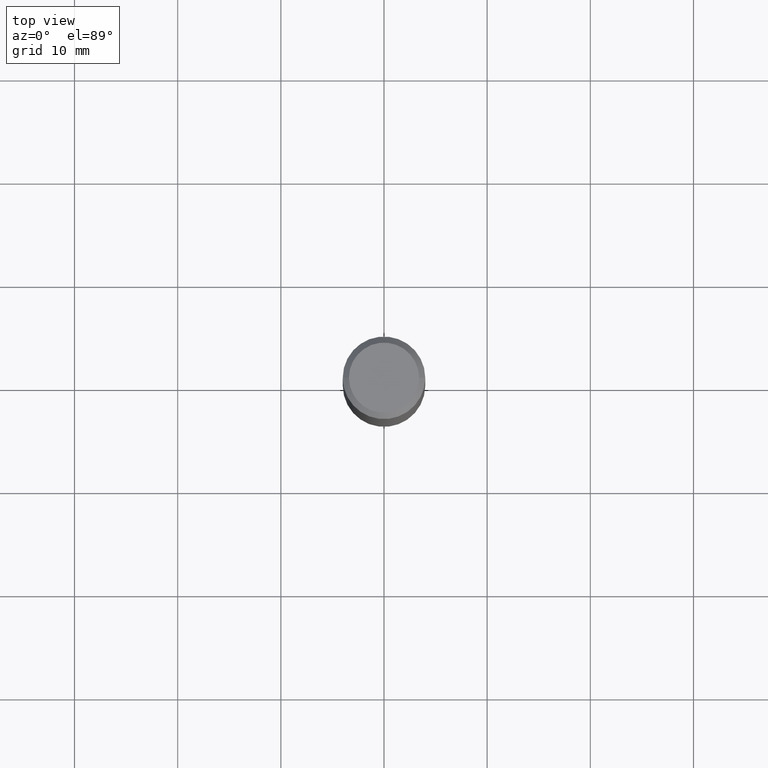
[diagram: clean part render]
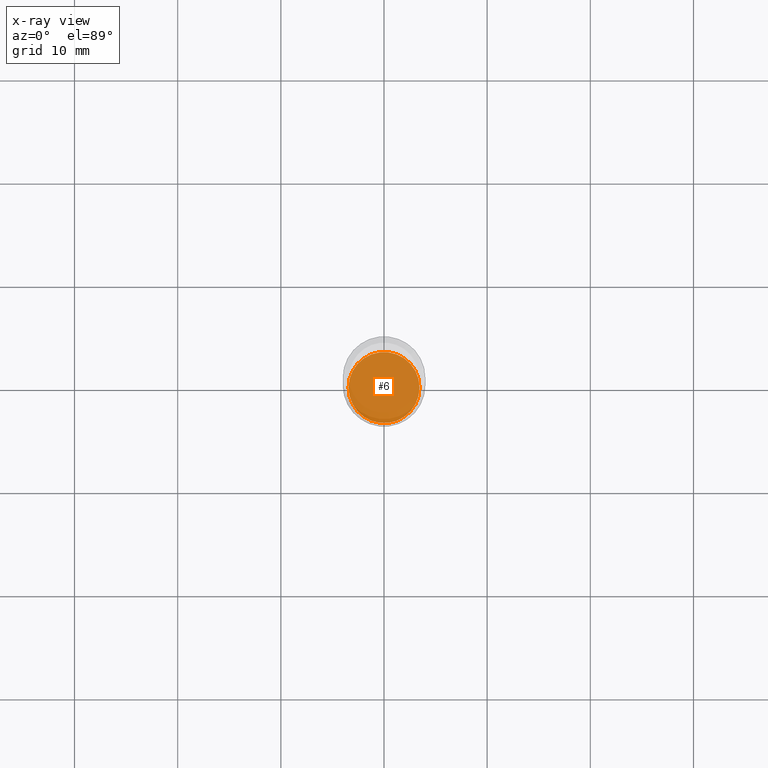
[diagram: x-ray — body ghosted, one internal face saturated and labeled with its STEP entity id]
A machine part, top view, then the same camera in x-ray: the body is ghosted and one INTERNAL B-rep face — a face not visible from any outside direction — is saturated and labeled: STEP entity #6.
In plain terms, the highlighted planar face has unit normal (-0, 0, 1).
Its self-contained STEP definition (entity closure, byte-faithful):
#6 = ADVANCED_FACE ( 'NONE', ( #193 ), #120, .F. ) ;
#7 = CARTESIAN_POINT ( 'NONE',  ( 5.333322919409164465E-29, -7.614571651883016400E-15, -2.180899999999999839 ) ) ;
#33 = EDGE_CURVE ( 'NONE', #326, #34, #128, .T. ) ;
#34 = VERTEX_POINT ( 'NONE', #237 ) ;
#52 = CARTESIAN_POINT ( 'NONE',  ( 5.333322919409164465E-29, -7.614571651883016400E-15, -2.180899999999999839 ) ) ;
#82 = DIRECTION ( 'NONE',  ( 1.000000000000000000, -6.982962677686264344E-15, 0.000000000000000000 ) ) ;
#90 = DIRECTION ( 'NONE',  ( -2.438088387897960049E-29, 3.491481338843145188E-15, 1.000000000000000000 ) ) ;
#105 = EDGE_LOOP ( 'NONE', ( #198, #111 ) ) ;
#111 = ORIENTED_EDGE ( 'NONE', *, *, #325, .F. ) ;
#120 = PLANE ( 'NONE',  #250 ) ;
#126 = DIRECTION ( 'NONE',  ( -2.445468806185136597E-29, 3.491481338843145583E-15, 1.000000000000000000 ) ) ;
#128 = CIRCLE ( 'NONE', #151, 0.1355000000000000093 ) ;
#151 = AXIS2_PLACEMENT_3D ( 'NONE', #7, #126, #82 ) ;
#193 = FACE_OUTER_BOUND ( 'NONE', #105, .T. ) ;
#198 = ORIENTED_EDGE ( 'NONE', *, *, #33, .F. ) ;
#237 = CARTESIAN_POINT ( 'NONE',  ( -0.1355000000000000093, -6.649137017753969775E-15, -2.180899999999999839 ) ) ;
#238 = CARTESIAN_POINT ( 'NONE',  ( 5.333322919409164465E-29, -7.614571651883016400E-15, -2.180899999999999839 ) ) ;
#250 = AXIS2_PLACEMENT_3D ( 'NONE', #52, #90, #401 ) ;
#298 = CIRCLE ( 'NONE', #394, 0.1355000000000000093 ) ;
#325 = EDGE_CURVE ( 'NONE', #34, #326, #298, .T. ) ;
#326 = VERTEX_POINT ( 'NONE', #336 ) ;
#336 = CARTESIAN_POINT ( 'NONE',  ( 0.1355000000000000093, -8.560763094709504466E-15, -2.180899999999999839 ) ) ;
#373 = DIRECTION ( 'NONE',  ( -2.445468806185136597E-29, 3.491481338843145583E-15, 1.000000000000000000 ) ) ;
#394 = AXIS2_PLACEMENT_3D ( 'NONE', #238, #373, #413 ) ;
#401 = DIRECTION ( 'NONE',  ( 1.000000000000000000, -6.982962677686265922E-15, 4.876176775795935793E-29 ) ) ;
#413 = DIRECTION ( 'NONE',  ( 1.000000000000000000, -6.982962677686264344E-15, 0.000000000000000000 ) ) ;